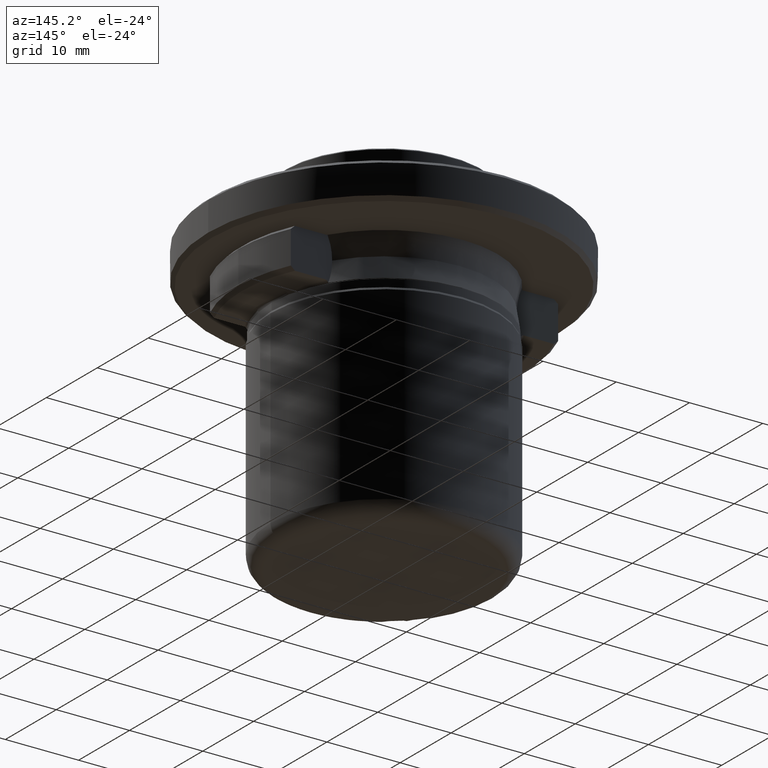
[diagram: clean part render]
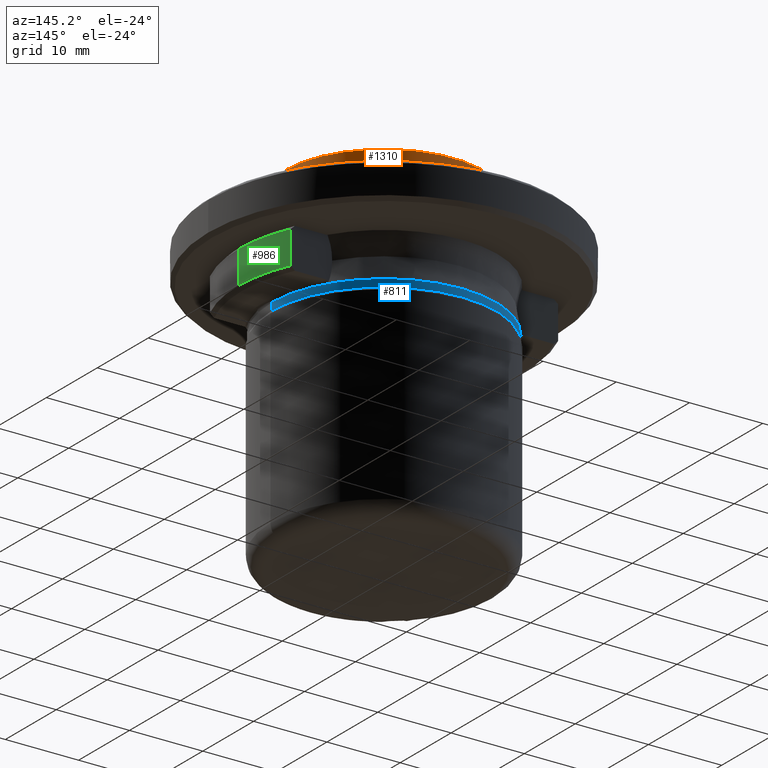
[diagram: same view with three faces highlighted in distinct colors, each labeled with its STEP entity id]
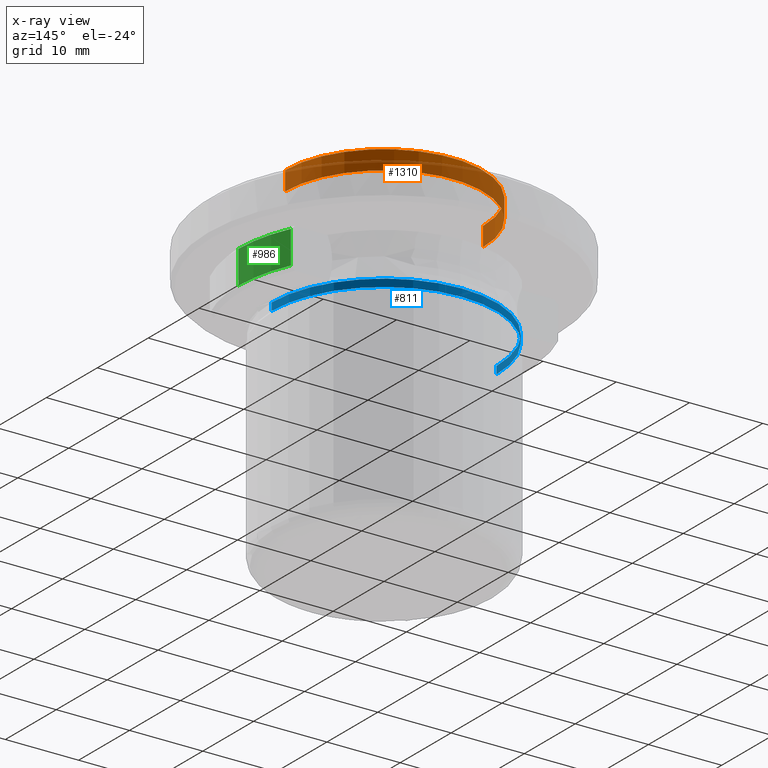
[diagram: x-ray of the same camera — body ghosted, the three highlighted faces saturated]
A machine part, auxiliary view with three faces highlighted in distinct colors.
The next image is the same camera in x-ray (body ghosted, the three faces saturated) — at least one of them is partly hidden behind the body in this view.
Their STEP definitions:

[orange] entity #1310 — the highlighted cylindrical surface (partial cylindrical patch) has radius 13.5 mm, axis along (-0, -0, 1).
#48 = CARTESIAN_POINT ( 'NONE',  ( -13.50000000000000000, 1.653273178848926900E-015, 18.23848561499994500 ) ) ;
#51 = VERTEX_POINT ( 'NONE', #674 ) ;
#97 = DIRECTION ( 'NONE',  ( 1.000000000000000000, 0.0000000000000000000, 0.0000000000000000000 ) ) ;
#166 = VECTOR ( 'NONE', #672, 1000.000000000000000 ) ;
#202 = CARTESIAN_POINT ( 'NONE',  ( -13.50000000000000000, 1.653273178848926900E-015, 15.63848561500005600 ) ) ;
#225 = DIRECTION ( 'NONE',  ( -0.0000000000000000000, -0.0000000000000000000, 1.000000000000000000 ) ) ;
#259 = DIRECTION ( 'NONE',  ( -0.0000000000000000000, -0.0000000000000000000, 1.000000000000000000 ) ) ;
#355 = VERTEX_POINT ( 'NONE', #202 ) ;
#406 = DIRECTION ( 'NONE',  ( 1.000000000000000000, 0.0000000000000000000, 0.0000000000000000000 ) ) ;
#568 = CARTESIAN_POINT ( 'NONE',  ( 13.50000000000000000, 0.0000000000000000000, 15.63848561500005600 ) ) ;
#622 = LINE ( 'NONE', #1113, #166 ) ;
#672 = DIRECTION ( 'NONE',  ( -0.0000000000000000000, -0.0000000000000000000, 1.000000000000000000 ) ) ;
#674 = CARTESIAN_POINT ( 'NONE',  ( 13.50000000000000000, 0.0000000000000000000, 18.23848561499994500 ) ) ;
#681 = EDGE_CURVE ( 'NONE', #1322, #51, #622, .T. ) ;
#693 = VECTOR ( 'NONE', #259, 1000.000000000000000 ) ;
#695 = ORIENTED_EDGE ( 'NONE', *, *, #809, .F. ) ;
#725 = EDGE_CURVE ( 'NONE', #1322, #355, #1237, .T. ) ;
#809 = EDGE_CURVE ( 'NONE', #51, #1732, #1957, .T. ) ;
#834 = AXIS2_PLACEMENT_3D ( 'NONE', #1159, #1468, #406 ) ;
#845 = EDGE_CURVE ( 'NONE', #355, #1732, #1903, .T. ) ;
#969 = ORIENTED_EDGE ( 'NONE', *, *, #845, .T. ) ;
#1008 = DIRECTION ( 'NONE',  ( -0.0000000000000000000, -0.0000000000000000000, 1.000000000000000000 ) ) ;
#1113 = CARTESIAN_POINT ( 'NONE',  ( 13.50000000000000000, 0.0000000000000000000, 25.60543566587849200 ) ) ;
#1137 = CARTESIAN_POINT ( 'NONE',  ( 0.0000000000000000000, 0.0000000000000000000, 15.63848561500005600 ) ) ;
#1159 = CARTESIAN_POINT ( 'NONE',  ( 0.0000000000000000000, 0.0000000000000000000, 25.60543566587849200 ) ) ;
#1173 = CARTESIAN_POINT ( 'NONE',  ( -13.50000000000000000, 1.653273178848926900E-015, 25.60543566587849200 ) ) ;
#1237 = CIRCLE ( 'NONE', #1610, 13.50000000000000000 ) ;
#1291 = DIRECTION ( 'NONE',  ( 1.000000000000000000, 0.0000000000000000000, 0.0000000000000000000 ) ) ;
#1310 = ADVANCED_FACE ( 'NONE', ( #1389 ), #1745, .T. ) ;
#1322 = VERTEX_POINT ( 'NONE', #568 ) ;
#1389 = FACE_OUTER_BOUND ( 'NONE', #1658, .T. ) ;
#1468 = DIRECTION ( 'NONE',  ( -0.0000000000000000000, -0.0000000000000000000, 1.000000000000000000 ) ) ;
#1542 = ORIENTED_EDGE ( 'NONE', *, *, #725, .T. ) ;
#1610 = AXIS2_PLACEMENT_3D ( 'NONE', #1137, #225, #1291 ) ;
#1658 = EDGE_LOOP ( 'NONE', ( #1542, #969, #695, #1865 ) ) ;
#1732 = VERTEX_POINT ( 'NONE', #48 ) ;
#1745 = CYLINDRICAL_SURFACE ( 'NONE', #834, 13.50000000000000000 ) ;
#1865 = ORIENTED_EDGE ( 'NONE', *, *, #681, .F. ) ;
#1903 = LINE ( 'NONE', #1173, #693 ) ;
#1913 = AXIS2_PLACEMENT_3D ( 'NONE', #1923, #1008, #97 ) ;
#1923 = CARTESIAN_POINT ( 'NONE',  ( 0.0000000000000000000, 0.0000000000000000000, 18.23848561499994500 ) ) ;
#1957 = CIRCLE ( 'NONE', #1913, 13.50000000000000000 ) ;

[blue] entity #811 — the highlighted cylindrical surface (partial cylindrical patch) has radius 15.35 mm, axis along (0, 0, 1).
#20 = CARTESIAN_POINT ( 'NONE',  ( 15.35000000010833100, 1.531588730713091600E-033, 1.538485614879580200 ) ) ;
#62 = VECTOR ( 'NONE', #1708, 1000.000000000000000 ) ;
#64 = ORIENTED_EDGE ( 'NONE', *, *, #1673, .T. ) ;
#187 = ORIENTED_EDGE ( 'NONE', *, *, #956, .T. ) ;
#235 = AXIS2_PLACEMENT_3D ( 'NONE', #860, #393, #1619 ) ;
#258 = ORIENTED_EDGE ( 'NONE', *, *, #601, .T. ) ;
#260 = CARTESIAN_POINT ( 'NONE',  ( 1.904325772732756100E-015, 15.35000000010833300, 1.538485614879580500 ) ) ;
#338 = CARTESIAN_POINT ( 'NONE',  ( 0.0000000000000000000, 0.0000000000000000000, 1.538485614879580200 ) ) ;
#349 = DIRECTION ( 'NONE',  ( 0.0000000000000000000, 0.0000000000000000000, 1.000000000000000000 ) ) ;
#393 = DIRECTION ( 'NONE',  ( 0.0000000000000000000, 0.0000000000000000000, 1.000000000000000000 ) ) ;
#493 = DIRECTION ( 'NONE',  ( 0.0000000000000000000, 1.000000000000000000, 1.412641267072120600E-017 ) ) ;
#497 = CARTESIAN_POINT ( 'NONE',  ( 15.35000000000000300, 0.0000000000000000000, 0.5001616530000000400 ) ) ;
#519 = CARTESIAN_POINT ( 'NONE',  ( -15.35000000010833100, 1.879832836704453800E-015, 1.538485614879580200 ) ) ;
#588 = AXIS2_PLACEMENT_3D ( 'NONE', #1724, #810, #1870 ) ;
#601 = EDGE_CURVE ( 'NONE', #853, #682, #1428, .T. ) ;
#612 = EDGE_CURVE ( 'NONE', #853, #792, #1833, .T. ) ;
#682 = VERTEX_POINT ( 'NONE', #519 ) ;
#696 = AXIS2_PLACEMENT_3D ( 'NONE', #338, #1403, #493 ) ;
#745 = DIRECTION ( 'NONE',  ( -0.0000000000000000000, 7.063206335360667900E-018, -1.000000000000000000 ) ) ;
#792 = VERTEX_POINT ( 'NONE', #1303 ) ;
#810 = DIRECTION ( 'NONE',  ( -0.0000000000000000000, -0.0000000000000000000, -1.000000000000000000 ) ) ;
#811 = ADVANCED_FACE ( 'NONE', ( #836 ), #1140, .T. ) ;
#823 = LINE ( 'NONE', #497, #62 ) ;
#836 = FACE_OUTER_BOUND ( 'NONE', #859, .T. ) ;
#853 = VERTEX_POINT ( 'NONE', #1324 ) ;
#859 = EDGE_LOOP ( 'NONE', ( #1849, #258, #187, #64, #1760 ) ) ;
#860 = CARTESIAN_POINT ( 'NONE',  ( 0.0000000000000000000, 0.0000000000000000000, 0.5001616530000000400 ) ) ;
#953 = CARTESIAN_POINT ( 'NONE',  ( -15.35000000000000300, 1.879832836691187500E-015, 0.5001616530000000400 ) ) ;
#956 = EDGE_CURVE ( 'NONE', #682, #1367, #1804, .T. ) ;
#961 = AXIS2_PLACEMENT_3D ( 'NONE', #1656, #745, #1799 ) ;
#1018 = VECTOR ( 'NONE', #349, 1000.000000000000000 ) ;
#1140 = CYLINDRICAL_SURFACE ( 'NONE', #235, 15.35000000000000300 ) ;
#1142 = EDGE_CURVE ( 'NONE', #792, #1630, #823, .T. ) ;
#1303 = CARTESIAN_POINT ( 'NONE',  ( 15.35000000000000300, 1.889017687684792300E-015, 0.5001616530000002600 ) ) ;
#1324 = CARTESIAN_POINT ( 'NONE',  ( -15.35000000000000300, 0.0000000000000000000, 0.5001616530000002600 ) ) ;
#1367 = VERTEX_POINT ( 'NONE', #260 ) ;
#1403 = DIRECTION ( 'NONE',  ( -0.0000000000000000000, 7.063206335360667900E-018, -1.000000000000000000 ) ) ;
#1428 = LINE ( 'NONE', #953, #1018 ) ;
#1619 = DIRECTION ( 'NONE',  ( 1.000000000000000000, 0.0000000000000000000, 0.0000000000000000000 ) ) ;
#1630 = VERTEX_POINT ( 'NONE', #20 ) ;
#1656 = CARTESIAN_POINT ( 'NONE',  ( 0.0000000000000000000, 0.0000000000000000000, 1.538485614879580200 ) ) ;
#1673 = EDGE_CURVE ( 'NONE', #1367, #1630, #1832, .T. ) ;
#1708 = DIRECTION ( 'NONE',  ( 0.0000000000000000000, 0.0000000000000000000, 1.000000000000000000 ) ) ;
#1724 = CARTESIAN_POINT ( 'NONE',  ( 0.0000000000000000000, 0.0000000000000000000, 0.5001616530000002600 ) ) ;
#1760 = ORIENTED_EDGE ( 'NONE', *, *, #1142, .F. ) ;
#1799 = DIRECTION ( 'NONE',  ( 0.0000000000000000000, 1.000000000000000000, 1.412641267072120600E-017 ) ) ;
#1804 = CIRCLE ( 'NONE', #961, 15.35000000010833300 ) ;
#1832 = CIRCLE ( 'NONE', #696, 15.35000000010833300 ) ;
#1833 = CIRCLE ( 'NONE', #588, 15.35000000000000300 ) ;
#1849 = ORIENTED_EDGE ( 'NONE', *, *, #612, .F. ) ;
#1870 = DIRECTION ( 'NONE',  ( 1.000000000000000000, 0.0000000000000000000, -1.412641267082090200E-017 ) ) ;

[green] entity #986 — the highlighted cylindrical surface (partial cylindrical patch) has radius 19.9 mm, axis along (0, -0, 1).
#132 = DIRECTION ( 'NONE',  ( 1.000000000000000000, 0.0000000000000000000, 0.0000000000000000000 ) ) ;
#154 = VERTEX_POINT ( 'NONE', #648 ) ;
#189 = EDGE_CURVE ( 'NONE', #221, #504, #1076, .T. ) ;
#200 = ORIENTED_EDGE ( 'NONE', *, *, #764, .F. ) ;
#221 = VERTEX_POINT ( 'NONE', #299 ) ;
#227 = DIRECTION ( 'NONE',  ( 0.0000000000000000000, -0.0000000000000000000, 1.000000000000000000 ) ) ;
#245 = CARTESIAN_POINT ( 'NONE',  ( 19.89999999999999900, 0.0000000000000000000, 2.438485614999999400 ) ) ;
#246 = EDGE_CURVE ( 'NONE', #154, #504, #1334, .T. ) ;
#299 = CARTESIAN_POINT ( 'NONE',  ( 18.24301236281149800, 7.949999995729952800, 2.438485615045177900 ) ) ;
#384 = CARTESIAN_POINT ( 'NONE',  ( 19.89999999999999900, 0.0000000000000000000, 2.438485614999999400 ) ) ;
#476 = CARTESIAN_POINT ( 'NONE',  ( 18.24301236100000200, 7.950000000000000200, 4.703711879000000100 ) ) ;
#504 = VERTEX_POINT ( 'NONE', #771 ) ;
#591 = CARTESIAN_POINT ( 'NONE',  ( 0.0000000000000000000, 0.0000000000000000000, 2.438485614999999400 ) ) ;
#597 = CARTESIAN_POINT ( 'NONE',  ( 0.0000000000000000000, 0.0000000000000000000, 2.438485614999999400 ) ) ;
#629 = VECTOR ( 'NONE', #931, 1000.000000000000000 ) ;
#648 = CARTESIAN_POINT ( 'NONE',  ( 19.89999999999999900, 0.0000000000000000000, 6.938485614999996700 ) ) ;
#746 = DIRECTION ( 'NONE',  ( 1.000000000000000000, 8.881784197001252300E-016, 0.0000000000000000000 ) ) ;
#748 = CIRCLE ( 'NONE', #1034, 19.89999999999999500 ) ;
#751 = DIRECTION ( 'NONE',  ( 0.0000000000000000000, 0.0000000000000000000, 1.000000000000000000 ) ) ;
#764 = EDGE_CURVE ( 'NONE', #812, #154, #1285, .T. ) ;
#769 = AXIS2_PLACEMENT_3D ( 'NONE', #1671, #751, #1059 ) ;
#771 = CARTESIAN_POINT ( 'NONE',  ( 18.24301236095068300, 7.950000000000000200, 6.938485615387606700 ) ) ;
#812 = VERTEX_POINT ( 'NONE', #245 ) ;
#931 = DIRECTION ( 'NONE',  ( -0.0000000000000000000, -0.0000000000000000000, 1.000000000000000000 ) ) ;
#955 = FACE_OUTER_BOUND ( 'NONE', #1357, .T. ) ;
#986 = ADVANCED_FACE ( 'NONE', ( #955 ), #1260, .T. ) ;
#1034 = AXIS2_PLACEMENT_3D ( 'NONE', #591, #1657, #746 ) ;
#1059 = DIRECTION ( 'NONE',  ( 1.000000000000000000, 0.0000000000000000000, 1.743440679373675800E-016 ) ) ;
#1076 = LINE ( 'NONE', #476, #629 ) ;
#1103 = ORIENTED_EDGE ( 'NONE', *, *, #189, .T. ) ;
#1184 = VECTOR ( 'NONE', #227, 1000.000000000000000 ) ;
#1260 = CYLINDRICAL_SURFACE ( 'NONE', #1581, 19.89999999999999900 ) ;
#1285 = LINE ( 'NONE', #384, #1184 ) ;
#1334 = CIRCLE ( 'NONE', #769, 19.89999999999999500 ) ;
#1357 = EDGE_LOOP ( 'NONE', ( #200, #1906, #1103, #1622 ) ) ;
#1450 = EDGE_CURVE ( 'NONE', #221, #812, #748, .T. ) ;
#1581 = AXIS2_PLACEMENT_3D ( 'NONE', #597, #1809, #132 ) ;
#1622 = ORIENTED_EDGE ( 'NONE', *, *, #246, .F. ) ;
#1657 = DIRECTION ( 'NONE',  ( -0.0000000000000000000, -0.0000000000000000000, -1.000000000000000000 ) ) ;
#1671 = CARTESIAN_POINT ( 'NONE',  ( 0.0000000000000000000, 0.0000000000000000000, 6.938485614999996700 ) ) ;
#1809 = DIRECTION ( 'NONE',  ( 0.0000000000000000000, -0.0000000000000000000, 1.000000000000000000 ) ) ;
#1906 = ORIENTED_EDGE ( 'NONE', *, *, #1450, .F. ) ;